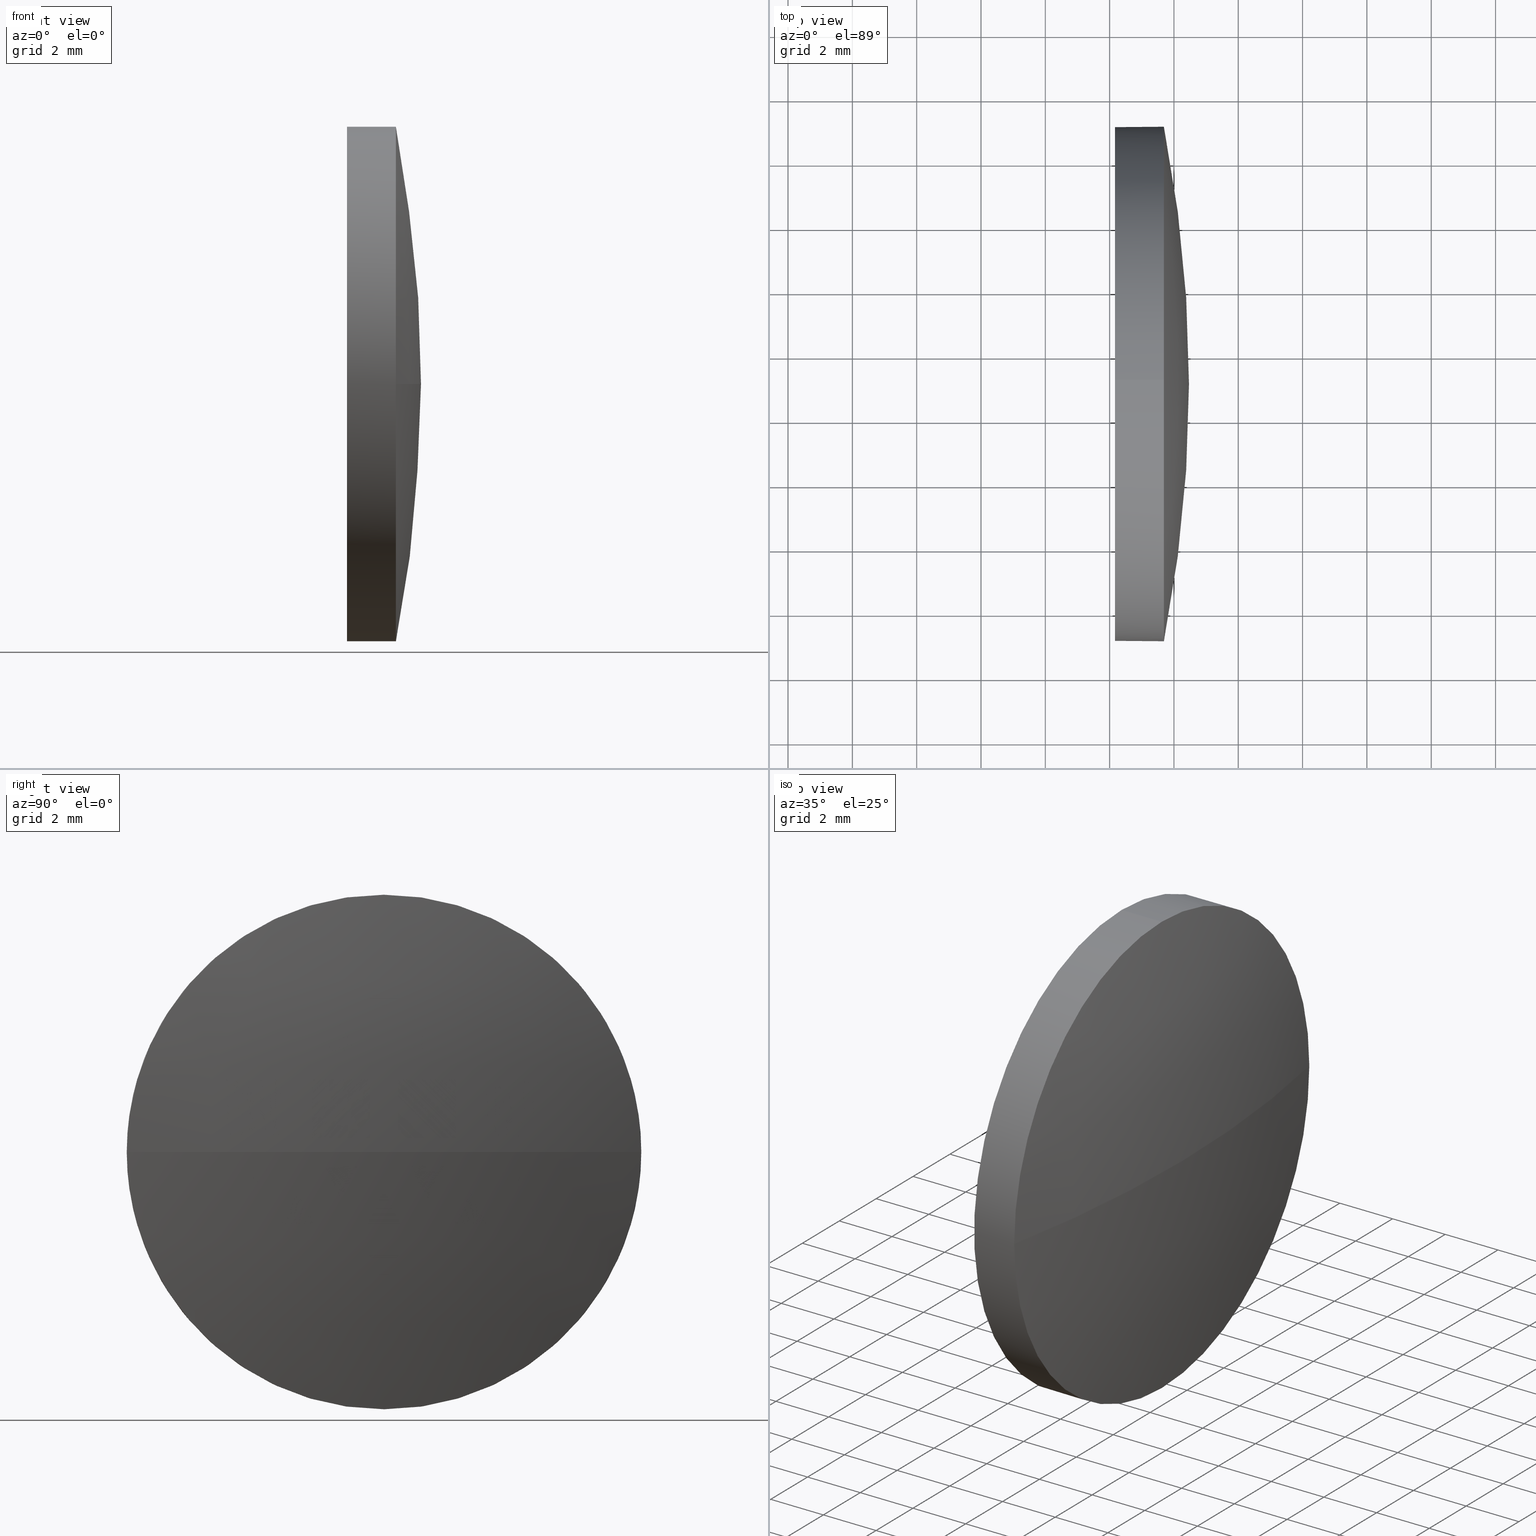
[diagram: canonical four-view strip — front | top / right | iso, engineering-drawing reading convention]
A machine part, canonical four-view strip (front | top / right | iso — engineering-drawing reading convention). The complete STEP part file that produces these views, byte-faithful:
ISO-10303-21;
HEADER;
FILE_DESCRIPTION (( 'STEP AP214' ),
    '1' );
FILE_NAME ('100031.STEP',
    '2019-04-22T08:58:16',
    ( '' ),
    ( '' ),
    'SwSTEP 2.0',
    'SolidWorks 2016',
    '' );
FILE_SCHEMA (( 'AUTOMOTIVE_DESIGN' ));
ENDSEC;

DATA;
#1 = PRESENTATION_LAYER_ASSIGNMENT (  '', '', ( #177 ) ) ;
#2 = CIRCLE ( 'NONE', #136, 41.41564102564093700 ) ;
#3 = ORIENTED_EDGE ( 'NONE', *, *, #70, .F. ) ;
#4 = VERTEX_POINT ( 'NONE', #109 ) ;
#5 = CYLINDRICAL_SURFACE ( 'NONE', #19, 7.999999999999992900 ) ;
#6 =( NAMED_UNIT ( * ) PLANE_ANGLE_UNIT ( ) SI_UNIT ( $, .RADIAN. ) );
#7 = DIRECTION ( 'NONE',  ( -1.000000000000000000, -0.0000000000000000000, -0.0000000000000000000 ) ) ;
#8 = DIRECTION ( 'NONE',  ( -1.000000000000000000, -0.0000000000000000000, -0.0000000000000000000 ) ) ;
#9 = AXIS2_PLACEMENT_3D ( 'NONE', #35, #10, #77 ) ;
#10 = DIRECTION ( 'NONE',  ( -0.0000000000000000000, 0.0000000000000000000, 1.000000000000000000 ) ) ;
#11 = MECHANICAL_DESIGN_GEOMETRIC_PRESENTATION_REPRESENTATION (  '', ( #177 ), #148 ) ;
#12 = ORIENTED_EDGE ( 'NONE', *, *, #165, .F. ) ;
#13 = LINE ( 'NONE', #105, #18 ) ;
#14 = APPLICATION_PROTOCOL_DEFINITION ( 'draft international standard', 'automotive_design', 1998, #51 ) ;
#15 = FACE_OUTER_BOUND ( 'NONE', #140, .T. ) ;
#16 =( NAMED_UNIT ( * ) SI_UNIT ( $, .STERADIAN. ) SOLID_ANGLE_UNIT ( ) );
#17 = ORIENTED_EDGE ( 'NONE', *, *, #176, .F. ) ;
#18 = VECTOR ( 'NONE', #24, 1000.000000000000000 ) ;
#19 = AXIS2_PLACEMENT_3D ( 'NONE', #37, #38, #135 ) ;
#20 = FACE_OUTER_BOUND ( 'NONE', #185, .T. ) ;
#21 = DIRECTION ( 'NONE',  ( 0.0000000000000000000, 0.0000000000000000000, 1.000000000000000000 ) ) ;
#22 = VERTEX_POINT ( 'NONE', #34 ) ;
#23 =( NAMED_UNIT ( * ) SI_UNIT ( $, .STERADIAN. ) SOLID_ANGLE_UNIT ( ) );
#24 = DIRECTION ( 'NONE',  ( -1.000000000000000000, -0.0000000000000000000, -0.0000000000000000000 ) ) ;
#25 = DIRECTION ( 'NONE',  ( -0.0000000000000000000, 0.0000000000000000000, -1.000000000000000000 ) ) ;
#26 = DIRECTION ( 'NONE',  ( 1.000000000000000000, 0.0000000000000000000, 0.0000000000000000000 ) ) ;
#27 = EDGE_CURVE ( 'NONE', #80, #95, #124, .T. ) ;
#28 = VERTEX_POINT ( 'NONE', #123 ) ;
#29 = APPLICATION_CONTEXT ( 'automotive_design' ) ;
#30 = AXIS2_PLACEMENT_3D ( 'NONE', #90, #103, #147 ) ;
#31 = CLOSED_SHELL ( 'NONE', ( #166, #89, #76, #36, #66 ) ) ;
#32 = CIRCLE ( 'NONE', #9, 41.41564102564093700 ) ;
#33 = MANIFOLD_SOLID_BREP ( '��ת1', #31 ) ;
#34 = CARTESIAN_POINT ( 'NONE',  ( 409.6874928420184600, 111.0797885215637400, -7.999999999999992900 ) ) ;
#35 = CARTESIAN_POINT ( 'NONE',  ( 369.0518518163775600, 111.0797885215635900, 0.0000000000000000000 ) ) ;
#36 = ADVANCED_FACE ( 'NONE', ( #20 ), #71, .T. ) ;
#37 = CARTESIAN_POINT ( 'NONE',  ( 404.4422242216561500, 111.0797885215637400, 0.0000000000000000000 ) ) ;
#38 = DIRECTION ( 'NONE',  ( -1.000000000000000000, -0.0000000000000000000, -0.0000000000000000000 ) ) ;
#39 = SURFACE_SIDE_STYLE ('',( #68 ) ) ;
#40 = ORIENTED_EDGE ( 'NONE', *, *, #111, .F. ) ;
#41 = ORIENTED_EDGE ( 'NONE', *, *, #137, .F. ) ;
#42 = DIRECTION ( 'NONE',  ( -0.0000000000000000000, 0.0000000000000000000, -1.000000000000000000 ) ) ;
#43 =( LENGTH_UNIT ( ) NAMED_UNIT ( * ) SI_UNIT ( .MILLI., .METRE. ) );
#44 = FACE_OUTER_BOUND ( 'NONE', #48, .T. ) ;
#45 = CARTESIAN_POINT ( 'NONE',  ( 409.6874928420184600, 119.0797885215637600, 0.0000000000000000000 ) ) ;
#46 = DIRECTION ( 'NONE',  ( 0.0000000000000000000, 1.000000000000000000, 0.0000000000000000000 ) ) ;
#47 = PRODUCT_RELATED_PRODUCT_CATEGORY ( 'part', '', ( #69 ) ) ;
#48 = EDGE_LOOP ( 'NONE', ( #40, #67, #93, #59 ) ) ;
#49 = DIRECTION ( 'NONE',  ( 0.0000000000000000000, 1.224646799147353200E-016, -1.000000000000000000 ) ) ;
#50 = PRODUCT_DEFINITION_SHAPE ( 'NONE', 'NONE',  #127 ) ;
#51 = APPLICATION_CONTEXT ( 'automotive_design' ) ;
#52 = AXIS2_PLACEMENT_3D ( 'NONE', #102, #61, #101 ) ;
#53 = VERTEX_POINT ( 'NONE', #63 ) ;
#54 = CIRCLE ( 'NONE', #30, 7.999999999999992900 ) ;
#55 = SURFACE_STYLE_USAGE ( .BOTH. , #39 ) ;
#56 = PRESENTATION_LAYER_ASSIGNMENT (  '', '', ( #164 ) ) ;
#57 = EDGE_CURVE ( 'NONE', #22, #28, #83, .T. ) ;
#58 = SURFACE_STYLE_USAGE ( .BOTH. , #74 ) ;
#59 = ORIENTED_EDGE ( 'NONE', *, *, #100, .F. ) ;
#60 = DIRECTION ( 'NONE',  ( 0.0000000000000000000, 0.0000000000000000000, 1.000000000000000000 ) ) ;
#61 = DIRECTION ( 'NONE',  ( -1.000000000000000000, -0.0000000000000000000, -0.0000000000000000000 ) ) ;
#62 = ORIENTED_EDGE ( 'NONE', *, *, #153, .F. ) ;
#63 = CARTESIAN_POINT ( 'NONE',  ( 408.1674928420184800, 111.0797885215637400, -7.999999999999992900 ) ) ;
#64 = FILL_AREA_STYLE_COLOUR ( '', #87 ) ;
#65 = MECHANICAL_DESIGN_GEOMETRIC_PRESENTATION_REPRESENTATION (  '', ( #164 ), #72 ) ;
#66 = ADVANCED_FACE ( 'NONE', ( #154 ), #181, .F. ) ;
#67 = ORIENTED_EDGE ( 'NONE', *, *, #137, .T. ) ;
#68 = SURFACE_STYLE_FILL_AREA ( #184 ) ;
#69 = PRODUCT ( '100031', '100031', '', ( #106 ) ) ;
#70 = EDGE_CURVE ( 'NONE', #173, #53, #107, .T. ) ;
#71 = CYLINDRICAL_SURFACE ( 'NONE', #52, 7.999999999999992900 ) ;
#72 =( GEOMETRIC_REPRESENTATION_CONTEXT ( 3 ) GLOBAL_UNCERTAINTY_ASSIGNED_CONTEXT ( ( #167 ) ) GLOBAL_UNIT_ASSIGNED_CONTEXT ( ( #81, #151, #139 ) ) REPRESENTATION_CONTEXT ( 'NONE', 'WORKASPACE' ) );
#73 = DIRECTION ( 'NONE',  ( 0.0000000000000000000, 0.0000000000000000000, -1.000000000000000000 ) ) ;
#74 = SURFACE_SIDE_STYLE ('',( #169 ) ) ;
#75 =( LENGTH_UNIT ( ) NAMED_UNIT ( * ) SI_UNIT ( .MILLI., .METRE. ) );
#76 = ADVANCED_FACE ( 'NONE', ( #172 ), #155, .T. ) ;
#77 = DIRECTION ( 'NONE',  ( 1.000000000000000000, 0.0000000000000000000, 0.0000000000000000000 ) ) ;
#78 = DIRECTION ( 'NONE',  ( -1.000000000000000000, -0.0000000000000000000, -0.0000000000000000000 ) ) ;
#79 = DIRECTION ( 'NONE',  ( 0.0000000000000000000, 1.000000000000000000, 0.0000000000000000000 ) ) ;
#80 = VERTEX_POINT ( 'NONE', #128 ) ;
#81 =( LENGTH_UNIT ( ) NAMED_UNIT ( * ) SI_UNIT ( .MILLI., .METRE. ) );
#82 = VECTOR ( 'NONE', #8, 1000.000000000000000 ) ;
#83 = CIRCLE ( 'NONE', #160, 7.999999999999992900 ) ;
#84 = ADVANCED_BREP_SHAPE_REPRESENTATION ( '100031', ( #33, #115 ), #144 ) ;
#85 = CARTESIAN_POINT ( 'NONE',  ( 409.6874928420184600, 111.0797885215637400, 0.0000000000000000000 ) ) ;
#86 = ORIENTED_EDGE ( 'NONE', *, *, #27, .F. ) ;
#87 = COLOUR_RGB ( '',1.000000000000000000, 1.000000000000000000, 1.000000000000000000 ) ;
#88 = AXIS2_PLACEMENT_3D ( 'NONE', #145, #7, #60 ) ;
#89 = ADVANCED_FACE ( 'NONE', ( #44 ), #174, .T. ) ;
#90 = CARTESIAN_POINT ( 'NONE',  ( 408.1674928420184800, 111.0797885215637400, 0.0000000000000000000 ) ) ;
#91 = CARTESIAN_POINT ( 'NONE',  ( 409.6874928420184600, 111.0797885215637400, 0.0000000000000000000 ) ) ;
#92 = EDGE_CURVE ( 'NONE', #28, #80, #186, .T. ) ;
#93 = ORIENTED_EDGE ( 'NONE', *, *, #57, .F. ) ;
#94 = ORIENTED_EDGE ( 'NONE', *, *, #100, .T. ) ;
#95 = VERTEX_POINT ( 'NONE', #45 ) ;
#96 = AXIS2_PLACEMENT_3D ( 'NONE', #159, #179, #73 ) ;
#97 = ORIENTED_EDGE ( 'NONE', *, *, #153, .T. ) ;
#98 = COLOUR_RGB ( '',1.000000000000000000, 1.000000000000000000, 1.000000000000000000 ) ;
#99 = DIRECTION ( 'NONE',  ( -1.000000000000000000, -0.0000000000000000000, -0.0000000000000000000 ) ) ;
#100 = EDGE_CURVE ( 'NONE', #95, #22, #143, .T. ) ;
#101 = DIRECTION ( 'NONE',  ( 0.0000000000000000000, 0.0000000000000000000, 1.000000000000000000 ) ) ;
#102 = CARTESIAN_POINT ( 'NONE',  ( 404.4422242216561500, 111.0797885215637400, 0.0000000000000000000 ) ) ;
#103 = DIRECTION ( 'NONE',  ( -1.000000000000000000, -0.0000000000000000000, -0.0000000000000000000 ) ) ;
#104 = AXIS2_PLACEMENT_3D ( 'NONE', #162, #168, #183 ) ;
#105 = CARTESIAN_POINT ( 'NONE',  ( 404.4422242216561500, 111.0797885215637400, -7.999999999999992900 ) ) ;
#106 = PRODUCT_CONTEXT ( 'NONE', #51, 'mechanical' ) ;
#107 = CIRCLE ( 'NONE', #88, 7.999999999999992900 ) ;
#108 = DIRECTION ( 'NONE',  ( -1.000000000000000000, -0.0000000000000000000, -0.0000000000000000000 ) ) ;
#109 = CARTESIAN_POINT ( 'NONE',  ( 410.4674928420184900, 111.0797885215635900, 0.0000000000000000000 ) ) ;
#110 = CARTESIAN_POINT ( 'NONE',  ( 409.6874928420184600, 111.0797885215637400, 0.0000000000000000000 ) ) ;
#111 = EDGE_CURVE ( 'NONE', #4, #95, #32, .T. ) ;
#112 = DIRECTION ( 'NONE',  ( 0.0000000000000000000, 0.0000000000000000000, 1.000000000000000000 ) ) ;
#113 = CARTESIAN_POINT ( 'NONE',  ( 404.4422242216561500, 111.0797885215637400, 7.999999999999992900 ) ) ;
#114 = CARTESIAN_POINT ( 'NONE',  ( 0.0000000000000000000, 0.0000000000000000000, 0.0000000000000000000 ) ) ;
#115 = AXIS2_PLACEMENT_3D ( 'NONE', #114, #117, #26 ) ;
#116 = PRESENTATION_STYLE_ASSIGNMENT (( #58 ) ) ;
#117 = DIRECTION ( 'NONE',  ( 0.0000000000000000000, 0.0000000000000000000, 1.000000000000000000 ) ) ;
#118 =( NAMED_UNIT ( * ) PLANE_ANGLE_UNIT ( ) SI_UNIT ( $, .RADIAN. ) );
#119 = AXIS2_PLACEMENT_3D ( 'NONE', #91, #78, #112 ) ;
#120 = EDGE_LOOP ( 'NONE', ( #121, #175 ) ) ;
#121 = ORIENTED_EDGE ( 'NONE', *, *, #70, .T. ) ;
#122 = AXIS2_PLACEMENT_3D ( 'NONE', #110, #108, #178 ) ;
#123 = CARTESIAN_POINT ( 'NONE',  ( 409.6874928420184600, 103.0797885215635400, -9.797174393178863100E-016 ) ) ;
#124 = CIRCLE ( 'NONE', #122, 7.999999999999992900 ) ;
#125 = ORIENTED_EDGE ( 'NONE', *, *, #111, .T. ) ;
#126 = UNCERTAINTY_MEASURE_WITH_UNIT (LENGTH_MEASURE( 1.000000000000000100E-005 ), #75, 'distance_accuracy_value', 'NONE');
#127 = PRODUCT_DEFINITION ( 'δ֪', '', #141, #129 ) ;
#128 = CARTESIAN_POINT ( 'NONE',  ( 409.6874928420184600, 111.0797885215637400, 7.999999999999992900 ) ) ;
#129 = PRODUCT_DEFINITION_CONTEXT ( 'detailed design', #29, 'design' ) ;
#130 = CARTESIAN_POINT ( 'NONE',  ( 369.0518518163775600, 111.0797885215635900, 0.0000000000000000000 ) ) ;
#131 = FILL_AREA_STYLE ('',( #133 ) ) ;
#132 = LINE ( 'NONE', #113, #82 ) ;
#133 = FILL_AREA_STYLE_COLOUR ( '', #98 ) ;
#134 = ORIENTED_EDGE ( 'NONE', *, *, #165, .T. ) ;
#135 = DIRECTION ( 'NONE',  ( 0.0000000000000000000, 0.0000000000000000000, 1.000000000000000000 ) ) ;
#136 = AXIS2_PLACEMENT_3D ( 'NONE', #138, #49, #163 ) ;
#137 = EDGE_CURVE ( 'NONE', #4, #28, #2, .T. ) ;
#138 = CARTESIAN_POINT ( 'NONE',  ( 369.0518518163775600, 111.0797885215635900, 0.0000000000000000000 ) ) ;
#139 =( NAMED_UNIT ( * ) SI_UNIT ( $, .STERADIAN. ) SOLID_ANGLE_UNIT ( ) );
#140 = EDGE_LOOP ( 'NONE', ( #94, #134, #3, #62, #157 ) ) ;
#141 = PRODUCT_DEFINITION_FORMATION_WITH_SPECIFIED_SOURCE ( '�κ�', '', #69, .NOT_KNOWN. ) ;
#142 = ORIENTED_EDGE ( 'NONE', *, *, #92, .T. ) ;
#143 = CIRCLE ( 'NONE', #119, 7.999999999999992900 ) ;
#144 =( GEOMETRIC_REPRESENTATION_CONTEXT ( 3 ) GLOBAL_UNCERTAINTY_ASSIGNED_CONTEXT ( ( #126 ) ) GLOBAL_UNIT_ASSIGNED_CONTEXT ( ( #75, #118, #16 ) ) REPRESENTATION_CONTEXT ( 'NONE', 'WORKASPACE' ) );
#145 = CARTESIAN_POINT ( 'NONE',  ( 408.1674928420184800, 111.0797885215637400, 0.0000000000000000000 ) ) ;
#146 = ORIENTED_EDGE ( 'NONE', *, *, #92, .F. ) ;
#147 = DIRECTION ( 'NONE',  ( 0.0000000000000000000, 0.0000000000000000000, 1.000000000000000000 ) ) ;
#148 =( GEOMETRIC_REPRESENTATION_CONTEXT ( 3 ) GLOBAL_UNCERTAINTY_ASSIGNED_CONTEXT ( ( #150 ) ) GLOBAL_UNIT_ASSIGNED_CONTEXT ( ( #43, #6, #23 ) ) REPRESENTATION_CONTEXT ( 'NONE', 'WORKASPACE' ) );
#149 = APPLICATION_PROTOCOL_DEFINITION ( 'draft international standard', 'automotive_design', 1998, #29 ) ;
#150 = UNCERTAINTY_MEASURE_WITH_UNIT (LENGTH_MEASURE( 1.000000000000000100E-005 ), #43, 'distance_accuracy_value', 'NONE');
#151 =( NAMED_UNIT ( * ) PLANE_ANGLE_UNIT ( ) SI_UNIT ( $, .RADIAN. ) );
#152 = AXIS2_PLACEMENT_3D ( 'NONE', #182, #25, #46 ) ;
#153 = EDGE_CURVE ( 'NONE', #80, #173, #132, .T. ) ;
#154 = FACE_OUTER_BOUND ( 'NONE', #120, .T. ) ;
#155 = SPHERICAL_SURFACE ( 'NONE', #156, 41.41564102564092300 ) ;
#156 = AXIS2_PLACEMENT_3D ( 'NONE', #130, #42, #79 ) ;
#157 = ORIENTED_EDGE ( 'NONE', *, *, #27, .T. ) ;
#158 = PRESENTATION_STYLE_ASSIGNMENT (( #55 ) ) ;
#159 = CARTESIAN_POINT ( 'NONE',  ( 408.1674928420184800, 111.0797885215637400, 0.0000000000000000000 ) ) ;
#160 = AXIS2_PLACEMENT_3D ( 'NONE', #85, #99, #21 ) ;
#161 = ORIENTED_EDGE ( 'NONE', *, *, #57, .T. ) ;
#162 = CARTESIAN_POINT ( 'NONE',  ( 409.6874928420184600, 111.0797885215637400, 0.0000000000000000000 ) ) ;
#163 = DIRECTION ( 'NONE',  ( 0.0000000000000000000, 1.000000000000000000, 1.224646799147352700E-016 ) ) ;
#164 = STYLED_ITEM ( 'NONE', ( #158 ), #84 ) ;
#165 = EDGE_CURVE ( 'NONE', #22, #53, #13, .T. ) ;
#166 = ADVANCED_FACE ( 'NONE', ( #15 ), #5, .T. ) ;
#167 = UNCERTAINTY_MEASURE_WITH_UNIT (LENGTH_MEASURE( 1.000000000000000100E-005 ), #81, 'distance_accuracy_value', 'NONE');
#168 = DIRECTION ( 'NONE',  ( -1.000000000000000000, -0.0000000000000000000, -0.0000000000000000000 ) ) ;
#169 = SURFACE_STYLE_FILL_AREA ( #131 ) ;
#170 = SHAPE_DEFINITION_REPRESENTATION ( #50, #84 ) ;
#171 = CARTESIAN_POINT ( 'NONE',  ( 408.1674928420184800, 111.0797885215637400, 7.999999999999992900 ) ) ;
#172 = FACE_OUTER_BOUND ( 'NONE', #180, .T. ) ;
#173 = VERTEX_POINT ( 'NONE', #171 ) ;
#174 = SPHERICAL_SURFACE ( 'NONE', #152, 41.41564102564092300 ) ;
#175 = ORIENTED_EDGE ( 'NONE', *, *, #176, .T. ) ;
#176 = EDGE_CURVE ( 'NONE', #53, #173, #54, .T. ) ;
#177 = STYLED_ITEM ( 'NONE', ( #116 ), #33 ) ;
#178 = DIRECTION ( 'NONE',  ( 0.0000000000000000000, 0.0000000000000000000, 1.000000000000000000 ) ) ;
#179 = DIRECTION ( 'NONE',  ( 1.000000000000000000, 0.0000000000000000000, 0.0000000000000000000 ) ) ;
#180 = EDGE_LOOP ( 'NONE', ( #41, #125, #86, #146 ) ) ;
#181 = PLANE ( 'NONE',  #96 ) ;
#182 = CARTESIAN_POINT ( 'NONE',  ( 369.0518518163775600, 111.0797885215635900, 0.0000000000000000000 ) ) ;
#183 = DIRECTION ( 'NONE',  ( 0.0000000000000000000, 0.0000000000000000000, 1.000000000000000000 ) ) ;
#184 = FILL_AREA_STYLE ('',( #64 ) ) ;
#185 = EDGE_LOOP ( 'NONE', ( #12, #161, #142, #97, #17 ) ) ;
#186 = CIRCLE ( 'NONE', #104, 7.999999999999992900 ) ;
ENDSEC;
END-ISO-10303-21;
